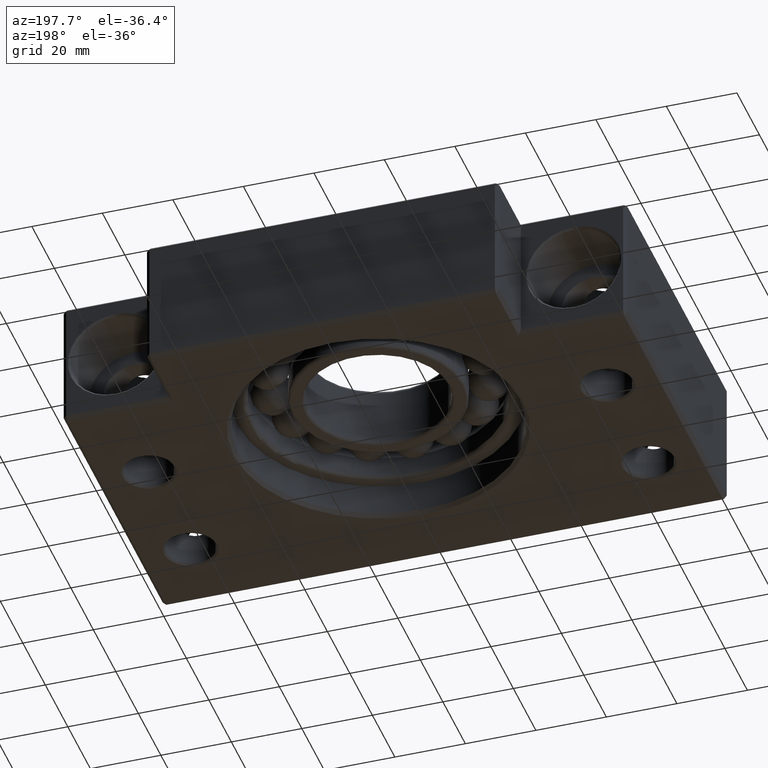
[diagram: clean part render]
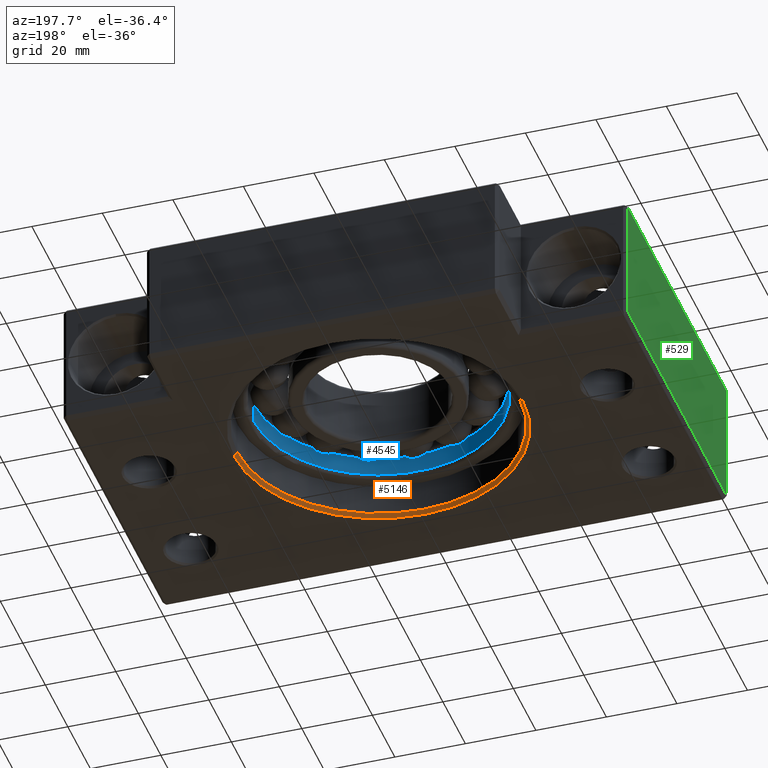
[diagram: same view with three faces highlighted in distinct colors, each labeled with its STEP entity id]
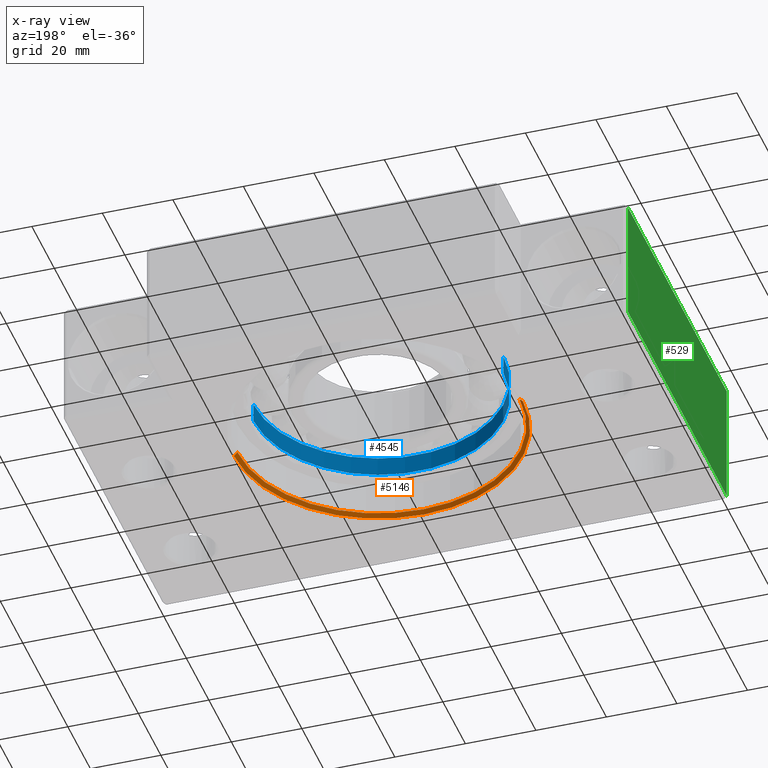
[diagram: x-ray of the same camera — body ghosted, the three highlighted faces saturated]
A machine part, auxiliary view with three faces highlighted in distinct colors.
The next image is the same camera in x-ray (body ghosted, the three faces saturated) — at least one of them is partly hidden behind the body in this view.
Their STEP definitions:

[orange] entity #5146 — the highlighted conical surface has half-angle 45 deg.
#4224 = DIRECTION ( 'NONE',  ( 1.000000000000000000, 0.0000000000000000000, 0.0000000000000000000 ) ) ;
#4225 = DIRECTION ( 'NONE',  ( -0.0000000000000000000, 0.0000000000000000000, 1.000000000000000000 ) ) ;
#4226 = AXIS2_PLACEMENT_3D ( 'NONE', #4231, #4225, #4224 ) ;
#4227 = CIRCLE ( 'NONE', #4226, 41.00000000000000700 ) ;
#4231 = CARTESIAN_POINT ( 'NONE',  ( 9.776152770639777600E-015, 60.00000000000000000, -18.50000000000000000 ) ) ;
#4241 = CARTESIAN_POINT ( 'NONE',  ( -41.00000000000000000, 60.00000000000000000, -18.50000000000000000 ) ) ;
#4242 = CARTESIAN_POINT ( 'NONE',  ( 41.00000000000001400, 60.00000000000000700, -18.50000000000000000 ) ) ;
#4244 = DIRECTION ( 'NONE',  ( -0.7071067811865402500, 0.0000000000000000000, -0.7071067811865549000 ) ) ;
#4245 = VECTOR ( 'NONE', #4244, 1000.000000000000100 ) ;
#4246 = CARTESIAN_POINT ( 'NONE',  ( -41.00000000000000000, 60.00000000000000000, -18.50000000000000000 ) ) ;
#4247 = LINE ( 'NONE', #4246, #4245 ) ;
#4318 = CARTESIAN_POINT ( 'NONE',  ( 9.776152770639777600E-015, 60.00000000000000000, -17.49999999999997900 ) ) ;
#4334 = DIRECTION ( 'NONE',  ( 0.7071067811865402500, 8.659274570719265400E-017, -0.7071067811865549000 ) ) ;
#4335 = VECTOR ( 'NONE', #4334, 1000.000000000000100 ) ;
#4336 = CARTESIAN_POINT ( 'NONE',  ( 41.00000000000001400, 60.00000000000000700, -18.50000000000000000 ) ) ;
#4337 = LINE ( 'NONE', #4336, #4335 ) ;
#4338 = CARTESIAN_POINT ( 'NONE',  ( -40.00000000000000000, 60.00000000000000000, -17.49999999999997900 ) ) ;
#4340 = CARTESIAN_POINT ( 'NONE',  ( 40.00000000000001400, 60.00000000000000700, -17.49999999999997900 ) ) ;
#4377 = DIRECTION ( 'NONE',  ( 1.000000000000000000, 0.0000000000000000000, 0.0000000000000000000 ) ) ;
#4378 = DIRECTION ( 'NONE',  ( -0.0000000000000000000, -0.0000000000000000000, -1.000000000000000000 ) ) ;
#4379 = AXIS2_PLACEMENT_3D ( 'NONE', #4318, #4378, #4377 ) ;
#4380 = CIRCLE ( 'NONE', #4379, 40.00000000000000700 ) ;
#4400 = DIRECTION ( 'NONE',  ( -1.000000000000000000, 0.0000000000000000000, 0.0000000000000000000 ) ) ;
#4401 = DIRECTION ( 'NONE',  ( -0.0000000000000000000, -0.0000000000000000000, -1.000000000000000000 ) ) ;
#4402 = CARTESIAN_POINT ( 'NONE',  ( 9.776152770639777600E-015, 60.00000000000000000, -18.50000000000000000 ) ) ;
#4403 = AXIS2_PLACEMENT_3D ( 'NONE', #4402, #4401, #4400 ) ;
#4404 = CONICAL_SURFACE ( 'NONE', #4403, 41.00000000000000700, 0.7853981633974379500 ) ;
#4405 = FACE_OUTER_BOUND ( 'NONE', #5116, .T. ) ;
#5050 = ORIENTED_EDGE ( 'NONE', *, *, #5054, .F. ) ;
#5054 = EDGE_CURVE ( 'NONE', #5119, #5062, #4247, .T. ) ;
#5058 = VERTEX_POINT ( 'NONE', #4242 ) ;
#5062 = VERTEX_POINT ( 'NONE', #4241 ) ;
#5078 = EDGE_CURVE ( 'NONE', #5062, #5058, #4227, .T. ) ;
#5080 = ORIENTED_EDGE ( 'NONE', *, *, #5078, .F. ) ;
#5115 = VERTEX_POINT ( 'NONE', #4340 ) ;
#5116 = EDGE_LOOP ( 'NONE', ( #5126, #5124, #5080, #5050 ) ) ;
#5119 = VERTEX_POINT ( 'NONE', #4338 ) ;
#5120 = EDGE_CURVE ( 'NONE', #5115, #5058, #4337, .T. ) ;
#5124 = ORIENTED_EDGE ( 'NONE', *, *, #5120, .T. ) ;
#5126 = ORIENTED_EDGE ( 'NONE', *, *, #5127, .F. ) ;
#5127 = EDGE_CURVE ( 'NONE', #5115, #5119, #4380, .T. ) ;
#5146 = ADVANCED_FACE ( 'NONE', ( #4405 ), #4404, .F. ) ;

[blue] entity #4545 — the highlighted cylindrical surface (partial cylindrical patch) has radius 35.5 mm, axis along (-0, -0, 1).
#2481 = EDGE_CURVE ( 'NONE', #2482, #4548, #2979, .T. ) ;
#2482 = VERTEX_POINT ( 'NONE', #2974 ) ;
#2974 = CARTESIAN_POINT ( 'NONE',  ( -35.50000000000000000, 60.00000000000000700, -2.397915761656340900 ) ) ;
#2975 = DIRECTION ( 'NONE',  ( 1.000000000000000000, 0.0000000000000000000, 0.0000000000000000000 ) ) ;
#2976 = DIRECTION ( 'NONE',  ( -0.0000000000000000000, -0.0000000000000000000, 1.000000000000000000 ) ) ;
#2977 = CARTESIAN_POINT ( 'NONE',  ( 9.143964685418714300E-015, 60.00000000000000000, -2.397915761656340900 ) ) ;
#2978 = AXIS2_PLACEMENT_3D ( 'NONE', #2977, #2976, #2975 ) ;
#2979 = CIRCLE ( 'NONE', #2978, 35.50000000000000700 ) ;
#3340 = CARTESIAN_POINT ( 'NONE',  ( 35.50000000000000000, 60.00000000000000000, -7.899999999999994100 ) ) ;
#3341 = CARTESIAN_POINT ( 'NONE',  ( -35.49999999999998600, 60.00000000000000700, -7.899999999999994100 ) ) ;
#3342 = DIRECTION ( 'NONE',  ( 1.000000000000000000, 0.0000000000000000000, 0.0000000000000000000 ) ) ;
#3343 = DIRECTION ( 'NONE',  ( -0.0000000000000000000, -0.0000000000000000000, 1.000000000000000000 ) ) ;
#3344 = CARTESIAN_POINT ( 'NONE',  ( 9.143964685418714300E-015, 60.00000000000000000, -7.899999999999994100 ) ) ;
#3345 = AXIS2_PLACEMENT_3D ( 'NONE', #3344, #3343, #3342 ) ;
#3346 = CIRCLE ( 'NONE', #3345, 35.49999999999999300 ) ;
#3363 = DIRECTION ( 'NONE',  ( -0.0000000000000000000, -0.0000000000000000000, 1.000000000000000000 ) ) ;
#3364 = VECTOR ( 'NONE', #3363, 1000.000000000000000 ) ;
#3365 = CARTESIAN_POINT ( 'NONE',  ( -35.49999999999999300, 60.00000000000000700, 8.839432060501902600 ) ) ;
#3366 = LINE ( 'NONE', #3365, #3364 ) ;
#3388 = CARTESIAN_POINT ( 'NONE',  ( 35.50000000000001400, 60.00000000000000000, -2.397915761656340900 ) ) ;
#3389 = DIRECTION ( 'NONE',  ( 1.000000000000000000, 0.0000000000000000000, 0.0000000000000000000 ) ) ;
#3390 = DIRECTION ( 'NONE',  ( -0.0000000000000000000, -0.0000000000000000000, 1.000000000000000000 ) ) ;
#3391 = CARTESIAN_POINT ( 'NONE',  ( 9.143964685418714300E-015, 60.00000000000000000, 8.839432060501902600 ) ) ;
#3392 = AXIS2_PLACEMENT_3D ( 'NONE', #3391, #3390, #3389 ) ;
#3394 = CYLINDRICAL_SURFACE ( 'NONE', #3392, 35.50000000000000000 ) ;
#3395 = FACE_OUTER_BOUND ( 'NONE', #4544, .T. ) ;
#3425 = DIRECTION ( 'NONE',  ( -0.0000000000000000000, -0.0000000000000000000, 1.000000000000000000 ) ) ;
#3426 = VECTOR ( 'NONE', #3425, 1000.000000000000000 ) ;
#3427 = CARTESIAN_POINT ( 'NONE',  ( 35.50000000000000700, 60.00000000000000000, 8.839432060501902600 ) ) ;
#3428 = LINE ( 'NONE', #3427, #3426 ) ;
#4528 = ORIENTED_EDGE ( 'NONE', *, *, #4530, .T. ) ;
#4530 = EDGE_CURVE ( 'NONE', #4540, #2482, #3366, .T. ) ;
#4539 = EDGE_CURVE ( 'NONE', #4540, #4541, #3346, .T. ) ;
#4540 = VERTEX_POINT ( 'NONE', #3341 ) ;
#4541 = VERTEX_POINT ( 'NONE', #3340 ) ;
#4542 = ORIENTED_EDGE ( 'NONE', *, *, #4539, .F. ) ;
#4544 = EDGE_LOOP ( 'NONE', ( #4542, #4528, #4567, #4563 ) ) ;
#4545 = ADVANCED_FACE ( 'NONE', ( #3395 ), #3394, .F. ) ;
#4548 = VERTEX_POINT ( 'NONE', #3388 ) ;
#4562 = EDGE_CURVE ( 'NONE', #4541, #4548, #3428, .T. ) ;
#4563 = ORIENTED_EDGE ( 'NONE', *, *, #4562, .F. ) ;
#4567 = ORIENTED_EDGE ( 'NONE', *, *, #2481, .T. ) ;

[green] entity #529 — the highlighted planar face has unit normal (1, 0, -0).
#11 = VERTEX_POINT ( 'NONE', #626 ) ;
#23 = ORIENTED_EDGE ( 'NONE', *, *, #24, .T. ) ;
#24 = EDGE_CURVE ( 'NONE', #11, #50, #686, .T. ) ;
#38 = EDGE_CURVE ( 'NONE', #46, #11, #725, .T. ) ;
#43 = VERTEX_POINT ( 'NONE', #716 ) ;
#44 = ORIENTED_EDGE ( 'NONE', *, *, #38, .T. ) ;
#45 = EDGE_CURVE ( 'NONE', #43, #46, #771, .T. ) ;
#46 = VERTEX_POINT ( 'NONE', #767 ) ;
#47 = ORIENTED_EDGE ( 'NONE', *, *, #45, .T. ) ;
#50 = VERTEX_POINT ( 'NONE', #766 ) ;
#53 = EDGE_CURVE ( 'NONE', #50, #43, #760, .T. ) ;
#55 = ORIENTED_EDGE ( 'NONE', *, *, #53, .T. ) ;
#529 = ADVANCED_FACE ( 'NONE', ( #1961 ), #1959, .F. ) ;
#530 = EDGE_LOOP ( 'NONE', ( #55, #47, #44, #23 ) ) ;
#626 = CARTESIAN_POINT ( 'NONE',  ( -80.00000000000001400, 89.00000000000002800, 17.50000000000002500 ) ) ;
#683 = DIRECTION ( 'NONE',  ( 0.0000000000000000000, 0.0000000000000000000, -1.000000000000000000 ) ) ;
#684 = VECTOR ( 'NONE', #683, 1000.000000000000000 ) ;
#685 = CARTESIAN_POINT ( 'NONE',  ( -80.00000000000001400, 89.00000000000002800, 18.50000000000000000 ) ) ;
#686 = LINE ( 'NONE', #685, #684 ) ;
#716 = CARTESIAN_POINT ( 'NONE',  ( -79.99999999999998600, 0.9999999999999733500, -17.50000000000002500 ) ) ;
#722 = DIRECTION ( 'NONE',  ( -3.083952846180991300E-016, 1.000000000000000000, 0.0000000000000000000 ) ) ;
#723 = VECTOR ( 'NONE', #722, 1000.000000000000000 ) ;
#724 = CARTESIAN_POINT ( 'NONE',  ( -80.00000000000001400, 90.00000000000000000, 17.50000000000002500 ) ) ;
#725 = LINE ( 'NONE', #724, #723 ) ;
#757 = DIRECTION ( 'NONE',  ( 3.083952846180991300E-016, -1.000000000000000000, 0.0000000000000000000 ) ) ;
#758 = VECTOR ( 'NONE', #757, 1000.000000000000000 ) ;
#759 = CARTESIAN_POINT ( 'NONE',  ( -80.00000000000001400, 90.00000000000000000, -17.50000000000002500 ) ) ;
#760 = LINE ( 'NONE', #759, #758 ) ;
#766 = CARTESIAN_POINT ( 'NONE',  ( -80.00000000000001400, 89.00000000000002800, -17.50000000000002500 ) ) ;
#767 = CARTESIAN_POINT ( 'NONE',  ( -79.99999999999998600, 0.9999999999999733500, 17.50000000000002500 ) ) ;
#768 = DIRECTION ( 'NONE',  ( 0.0000000000000000000, 0.0000000000000000000, 1.000000000000000000 ) ) ;
#769 = VECTOR ( 'NONE', #768, 1000.000000000000000 ) ;
#770 = CARTESIAN_POINT ( 'NONE',  ( -79.99999999999998600, 0.9999999999999731300, 18.50000000000000000 ) ) ;
#771 = LINE ( 'NONE', #770, #769 ) ;
#1955 = DIRECTION ( 'NONE',  ( -3.083952846180991300E-016, 1.000000000000000000, 0.0000000000000000000 ) ) ;
#1956 = DIRECTION ( 'NONE',  ( 1.000000000000000000, 3.083952846180991300E-016, -0.0000000000000000000 ) ) ;
#1957 = CARTESIAN_POINT ( 'NONE',  ( -80.00000000000001400, 90.00000000000000000, 18.50000000000000000 ) ) ;
#1958 = AXIS2_PLACEMENT_3D ( 'NONE', #1957, #1956, #1955 ) ;
#1959 = PLANE ( 'NONE',  #1958 ) ;
#1961 = FACE_OUTER_BOUND ( 'NONE', #530, .T. ) ;